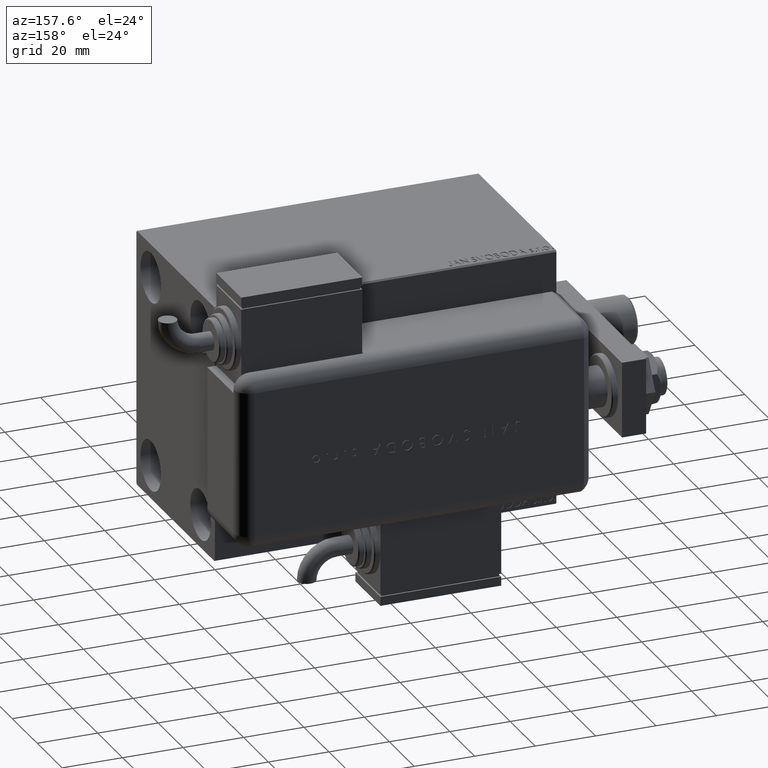
[diagram: clean part render]
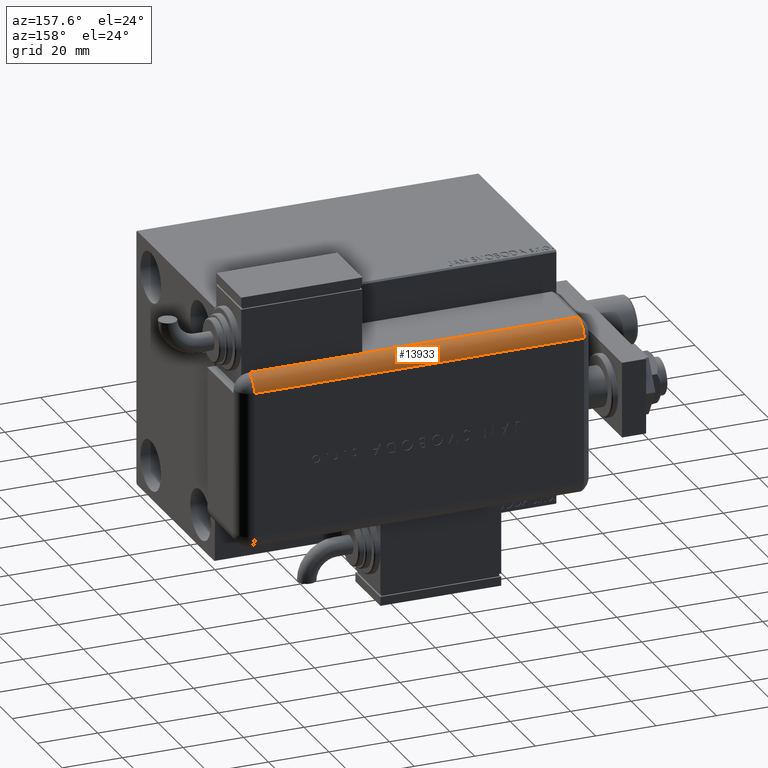
[diagram: same view with one face highlighted and labeled with its STEP entity id]
A machine part, auxiliary view. The second image highlights one B-rep face of the part: STEP entity #13933.
In plain terms, the highlighted cylindrical surface (edge-blend (fillet) strip) has radius 5 mm, axis along (1, -0, -0).
Its self-contained STEP definition (entity closure, byte-faithful):
#2361 = VERTEX_POINT ( 'NONE', #40974 ) ;
#2807 = CARTESIAN_POINT ( 'NONE',  ( 28.99999999999999645, 20.79999999999998650, 114.0000000000000000 ) ) ;
#2961 = LINE ( 'NONE', #21557, #53874 ) ;
#3422 = LINE ( 'NONE', #2807, #30132 ) ;
#6048 = VERTEX_POINT ( 'NONE', #29429 ) ;
#6677 = VERTEX_POINT ( 'NONE', #59784 ) ;
#7225 = VECTOR ( 'NONE', #55899, 1000.000000000000000 ) ;
#8794 = EDGE_CURVE ( 'NONE', #15881, #25616, #2961, .T. ) ;
#10533 = CARTESIAN_POINT ( 'NONE',  ( 24.00000000000000000, 20.79999999999998650, 43.00000000000000000 ) ) ;
#13933 = ADVANCED_FACE ( 'NONE', ( #27922 ), #23066, .T. ) ;
#14235 = DIRECTION ( 'NONE',  ( 1.000000000000000000, -3.261280134836396706E-14, 0.000000000000000000 ) ) ;
#15881 = VERTEX_POINT ( 'NONE', #34302 ) ;
#17644 = CARTESIAN_POINT ( 'NONE',  ( 24.00000000000000000, 20.79999999999998650, 114.0000000000000000 ) ) ;
#18028 = CARTESIAN_POINT ( 'NONE',  ( 24.00000000000000000, 20.79999999999998650, 5.000000000000004441 ) ) ;
#18493 = DIRECTION ( 'NONE',  ( 0.000000000000000000, 0.000000000000000000, -1.000000000000000000 ) ) ;
#19077 = LINE ( 'NONE', #32779, #7225 ) ;
#21373 = ORIENTED_EDGE ( 'NONE', *, *, #53351, .F. ) ;
#21557 = CARTESIAN_POINT ( 'NONE',  ( 24.00000000000000000, 25.79999999999998295, 114.0000000000000000 ) ) ;
#21916 = DIRECTION ( 'NONE',  ( -0.000000000000000000, -0.000000000000000000, 1.000000000000000000 ) ) ;
#22224 = EDGE_CURVE ( 'NONE', #6677, #25616, #50337, .T. ) ;
#22281 = EDGE_LOOP ( 'NONE', ( #38057, #52668, #31197, #32401, #21373, #46594 ) ) ;
#23066 = CYLINDRICAL_SURFACE ( 'NONE', #44331, 5.000000000000000888 ) ;
#24088 = AXIS2_PLACEMENT_3D ( 'NONE', #18028, #27143, #49359 ) ;
#25616 = VERTEX_POINT ( 'NONE', #28284 ) ;
#27143 = DIRECTION ( 'NONE',  ( -0.000000000000000000, -0.000000000000000000, 1.000000000000000000 ) ) ;
#27922 = FACE_OUTER_BOUND ( 'NONE', #22281, .T. ) ;
#28284 = CARTESIAN_POINT ( 'NONE',  ( 24.00000000000000000, 25.79999999999998295, 5.000000000000004441 ) ) ;
#29429 = CARTESIAN_POINT ( 'NONE',  ( 28.99599839871871865, 20.99999999999999289, 43.00000000000000000 ) ) ;
#30132 = VECTOR ( 'NONE', #57934, 1000.000000000000000 ) ;
#30368 = DIRECTION ( 'NONE',  ( 0.000000000000000000, 0.000000000000000000, -1.000000000000000000 ) ) ;
#31197 = ORIENTED_EDGE ( 'NONE', *, *, #22224, .T. ) ;
#32401 = ORIENTED_EDGE ( 'NONE', *, *, #8794, .F. ) ;
#32779 = CARTESIAN_POINT ( 'NONE',  ( 28.99599839871871865, 20.99999999999998224, 114.0000000000000000 ) ) ;
#33301 = CIRCLE ( 'NONE', #56632, 5.000000000000000888 ) ;
#33981 = DIRECTION ( 'NONE',  ( -0.000000000000000000, 0.000000000000000000, -1.000000000000000000 ) ) ;
#34302 = CARTESIAN_POINT ( 'NONE',  ( 24.00000000000000000, 25.79999999999998295, 114.0000000000000000 ) ) ;
#34328 = AXIS2_PLACEMENT_3D ( 'NONE', #10533, #33981, #14235 ) ;
#34476 = EDGE_CURVE ( 'NONE', #6677, #6048, #19077, .T. ) ;
#38057 = ORIENTED_EDGE ( 'NONE', *, *, #54820, .F. ) ;
#40974 = CARTESIAN_POINT ( 'NONE',  ( 28.99999999999999645, 20.79999999999998650, 43.00000000000000000 ) ) ;
#41437 = CARTESIAN_POINT ( 'NONE',  ( 28.99999999999999645, 20.79999999999998650, 114.0000000000000000 ) ) ;
#43072 = CIRCLE ( 'NONE', #34328, 5.000000000000000888 ) ;
#44331 = AXIS2_PLACEMENT_3D ( 'NONE', #55321, #18493, #45586 ) ;
#45354 = DIRECTION ( 'NONE',  ( -1.000000000000000000, 0.000000000000000000, 0.000000000000000000 ) ) ;
#45586 = DIRECTION ( 'NONE',  ( -1.000000000000000000, 0.000000000000000000, 0.000000000000000000 ) ) ;
#46594 = ORIENTED_EDGE ( 'NONE', *, *, #47929, .F. ) ;
#47929 = EDGE_CURVE ( 'NONE', #2361, #58764, #3422, .T. ) ;
#49359 = DIRECTION ( 'NONE',  ( -1.000000000000000000, 0.000000000000000000, 0.000000000000000000 ) ) ;
#50337 = CIRCLE ( 'NONE', #24088, 5.000000000000000888 ) ;
#52668 = ORIENTED_EDGE ( 'NONE', *, *, #34476, .F. ) ;
#53351 = EDGE_CURVE ( 'NONE', #58764, #15881, #33301, .T. ) ;
#53874 = VECTOR ( 'NONE', #30368, 1000.000000000000000 ) ;
#54820 = EDGE_CURVE ( 'NONE', #6048, #2361, #43072, .T. ) ;
#55321 = CARTESIAN_POINT ( 'NONE',  ( 24.00000000000000000, 20.79999999999998650, 114.0000000000000000 ) ) ;
#55899 = DIRECTION ( 'NONE',  ( -0.000000000000000000, -0.000000000000000000, 1.000000000000000000 ) ) ;
#56632 = AXIS2_PLACEMENT_3D ( 'NONE', #17644, #21916, #45354 ) ;
#57934 = DIRECTION ( 'NONE',  ( -0.000000000000000000, -0.000000000000000000, 1.000000000000000000 ) ) ;
#58764 = VERTEX_POINT ( 'NONE', #41437 ) ;
#59784 = CARTESIAN_POINT ( 'NONE',  ( 28.99599839871871865, 21.00000000000000000, 5.000000000000004441 ) ) ;